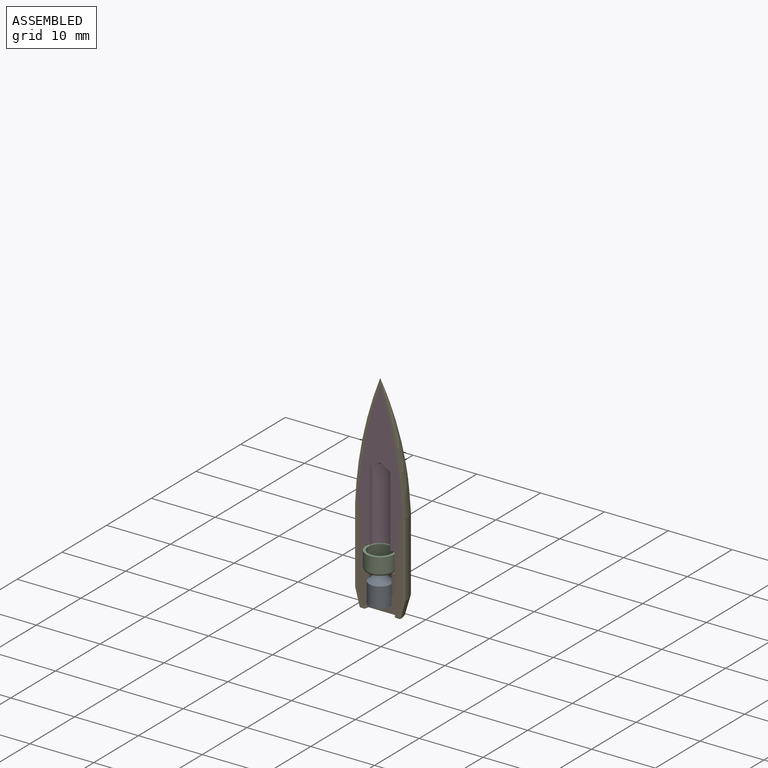
[diagram: assembled view]
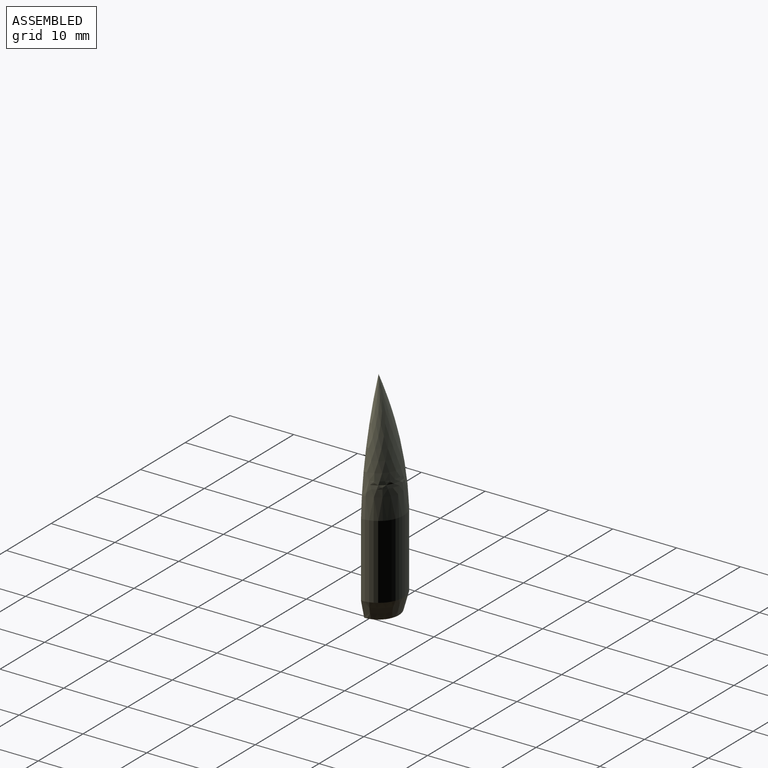
[diagram: assembled view, second angle]
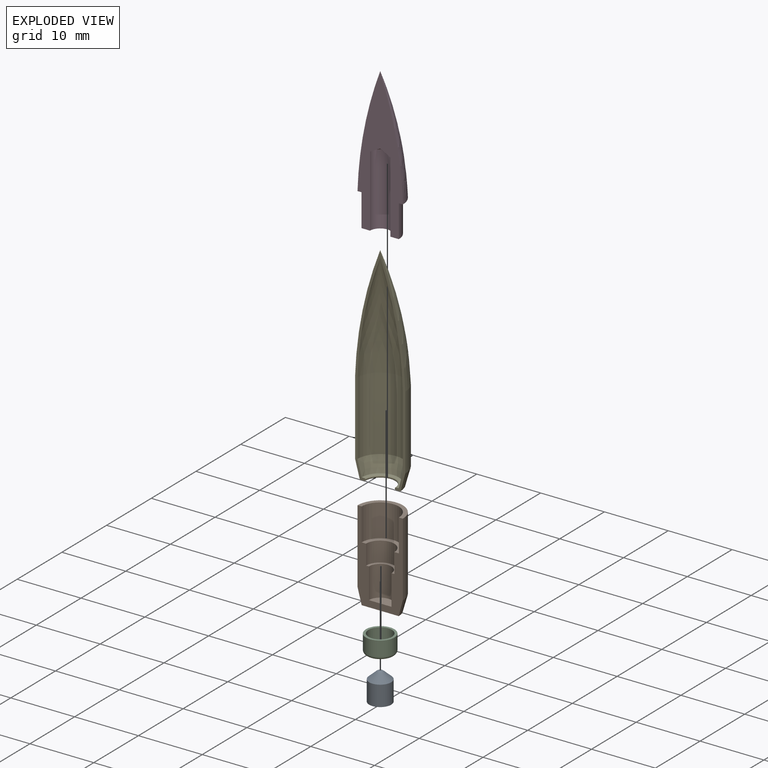
[diagram: exploded view]
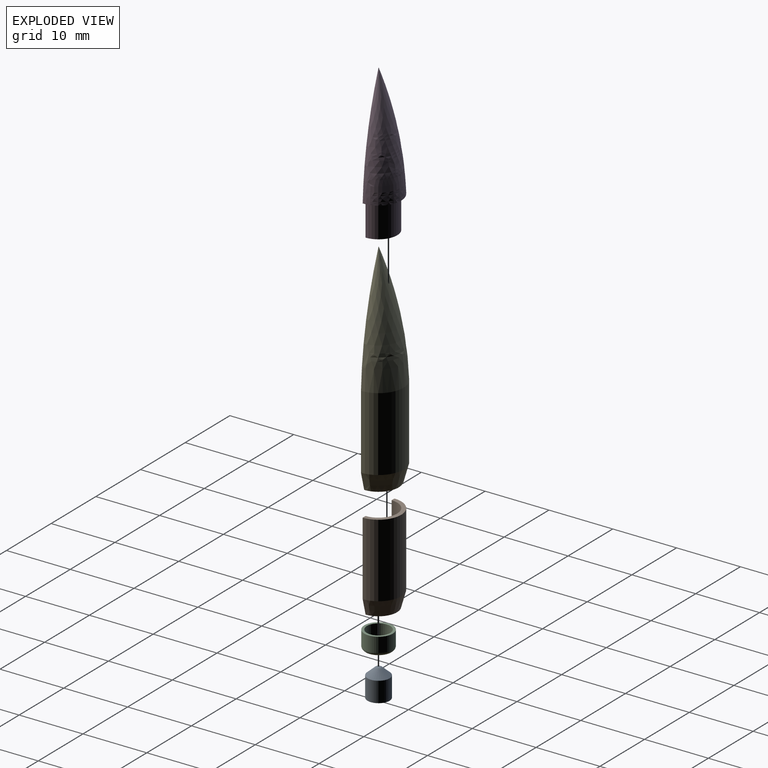
[diagram: exploded view, second angle]
ASSEMBLY  parts=5 mates=4
PART A: 4 faces, bbox 3.5x3.5x4.4 mm
  f0: sphere r=0.79mm, area 1mm2, adj f3
  f1: plane 3.45x3.45mm, normal (0,0,-1), area 9.4mm2, adj f2
  f2: cylinder r=1.73mm len=3.45mm, axis (0,0,-1), area 34.5mm2, adj f1,f3
  f3: cone r=1.73mm half-angle=48.3deg, axis (0,0,-1), area 11.4mm2, adj f0,f2
PART B: 11 faces, bbox 7.1x3.6x14 mm
  f0: plane 7.11x3.56mm, normal (0,0,1), area 6.5mm2, adj f1,f9,f10
  f1: cylinder r=2.92mm len=5.84mm, axis (0,0,-1), area 46.6mm2, adj f0,f2,f10
  f2: plane 5.84x2.92mm, normal (0,0,1), area 5.6mm2, adj f1,f3,f10
  f3: cylinder r=2.22mm len=4.45mm, axis (0,0,-1), area 21.7mm2, adj f2,f4,f10
  f4: plane 4.45x2.22mm, normal (0,0,1), area 2.8mm2, adj f3,f5,f10
  f5: cylinder r=1.78mm len=4.78mm, axis (0,0,-1), area 26.7mm2, adj f4,f6,f10
  f6: plane 3.56x1.78mm, normal (0,0,1), area 5mm2, adj f5,f10
  f7: plane 5.81x2.9mm, normal (0,0,-1), area 13.3mm2, adj f8,f10
  f8: cone r=3.56mm half-angle=15deg, axis (0,0,1), area 25.5mm2, adj f7,f9,f10
  f9: cylinder r=3.56mm len=11.54mm, axis (0,0,-1), area 128.9mm2, adj f0,f8,f10
  f10: plane 13.97x7.11mm, normal (0,-1,0), area 37.3mm2, adj f0,f1,f2,f3,f4,f5,f6,f7
PART C: 7 faces, bbox 4.8x4.8x2.8 mm
  f0: cylinder r=2.22mm len=4.45mm, axis (0,0,-1), area 31.9mm2, adj f1,f6
  f1: plane 4.45x4.45mm, normal (0,0,1), area 4.9mm2, adj f0,f2
  f2: cylinder r=1.84mm len=3.68mm, axis (0,0,-1), area 26.5mm2, adj f1,f3
  f3: torus R=1.71mm, axis (0,0,-1), area 2.3mm2, adj f2,f4
  f4: plane 3.43x3.43mm, normal (0,0,1), area 9.2mm2, adj f3
  f5: plane 3.43x3.43mm, normal (0,0,-1), area 9.2mm2, adj f6
  f6: torus R=1.71mm, axis (0,0,-1), area 10.2mm2, adj f0,f5
PART D: 7 faces, bbox 7.1x3.6x23 mm
  f0: cylinder r=1.59mm len=11.21mm, axis (0,0,-1), area 55.9mm2, adj f1,f5,f6
  f1: plane 5.84x2.92mm, normal (0,0,-1), area 9.4mm2, adj f0,f2,f6
  f2: cylinder r=2.92mm len=5.84mm, axis (0,0,-1), area 46.6mm2, adj f1,f3,f6
  f3: plane 7.11x3.56mm, normal (0,0,-1), area 6.5mm2, adj f2,f4,f6
  f4: revolved ~17.93x7.11mm, area 130.4mm2, adj f3,f6
  f5: cone r=0mm half-angle=62deg, axis (0,0,-1), area 4.5mm2, adj f0,f6
  f6: plane 23.01x7.11mm, normal (0,-1,0), area 74.6mm2, adj f0,f1,f2,f3,f4,f5
PART E: 13 faces, bbox 7.9x3.9x33.3 mm
  f0: revolved ~17.91x7.11mm, area 130.2mm2, adj f1,f9
  f1: cylinder r=3.56mm len=11.54mm, axis (0,0,-1), area 128.9mm2, adj f0,f2,f9
  f2: cone r=3.56mm half-angle=15deg, axis (0,0,1), area 25.5mm2, adj f1,f3,f9
  f3: plane 5.81x2.9mm, normal (0,0,1), area 3.7mm2, adj f2,f9,f10
  f4: cylinder r=2.29mm len=4.57mm, axis (0,0,-1), area 0.2mm2, adj f9,f10,f11
  f5: plane 6.12x3.06mm, normal (0,0,-1), area 5.2mm2, adj f9,f11,f12
  f6: cone r=3.94mm half-angle=15deg, axis (0,0,1), area 30.7mm2, adj f7,f9,f12
  f7: cylinder r=3.94mm len=11.6mm, axis (0,0,-1), area 143.5mm2, adj f6,f8,f9
  f8: revolved ~18.96x7.87mm, area 153.3mm2, adj f7,f9
  f9: plane 33.33x7.87mm, normal (0,-1,0), area 25.8mm2, adj f0,f1,f2,f3,f4,f5,f6,f7
  f10: torus R=2.46mm, axis (0,0,1), area 2.1mm2, adj f3,f4,f9
  f11: torus R=2.46mm, axis (0,0,1), area 2.1mm2, adj f4,f5,f9
  f12: torus R=3.06mm, axis (0,0,1), area 2.3mm2, adj f5,f6,f9
PLACE A rot(axis=(0,0,-1),180deg) t=(0.11,-4.6,1.24)mm
PLACE B rot(axis=(0,0,1),0deg) t=(0.11,-4.6,0.2)mm fixed
PLACE C rot(axis=(0,0,1),0deg) t=(0.11,-4.6,5.99)mm
PLACE D rot(axis=(0,0,1),0deg) t=(0.11,-4.6,14.17)mm
PLACE E rot(axis=(0,0,1),0deg) t=(0.11,-4.6,0.2)mm
MATE fastened B.f1 <-> D.f0  axis (0,0,1) through (0.11,-4.6,14.17)mm
MATE fastened B.f1 <-> C.f0  axis (0,0,-1) through (0.11,-4.6,5.99)mm
MATE slider B.f1 <-> A.f2  axis (0,0,-1) through (0.11,-4.6,1.21)mm
MATE fastened B.f1 <-> E.f1  axis (0,0,-1) through (0.11,-4.6,0.2)mm
